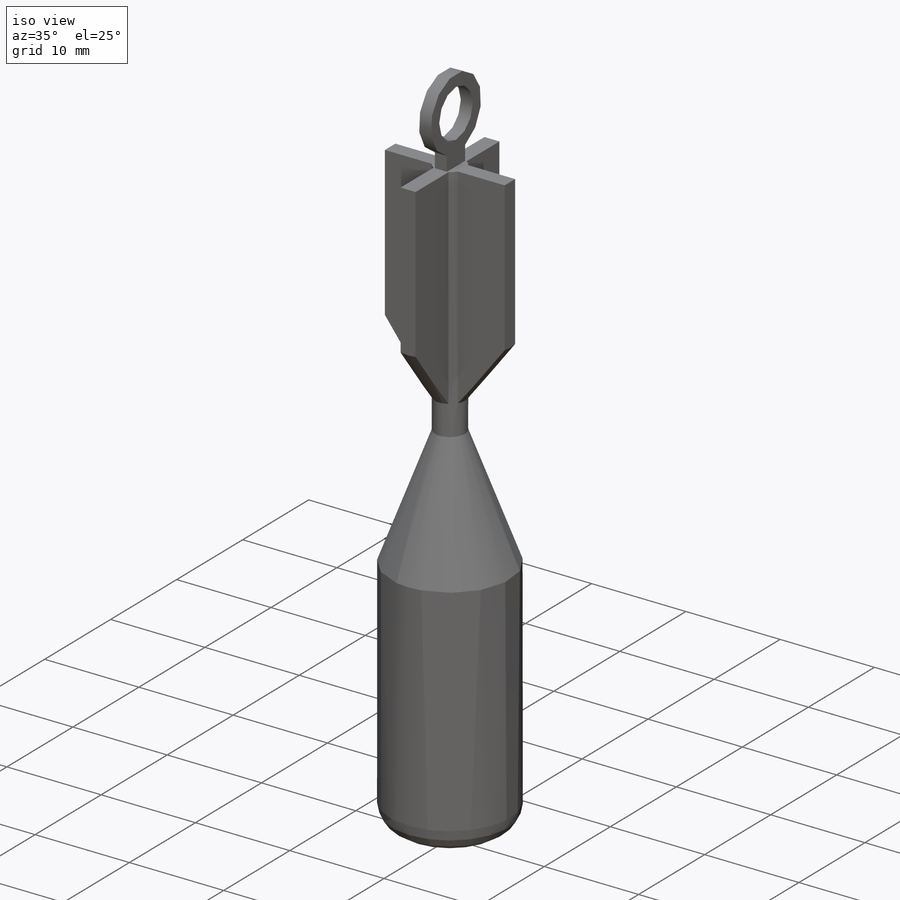
[diagram: iso view]
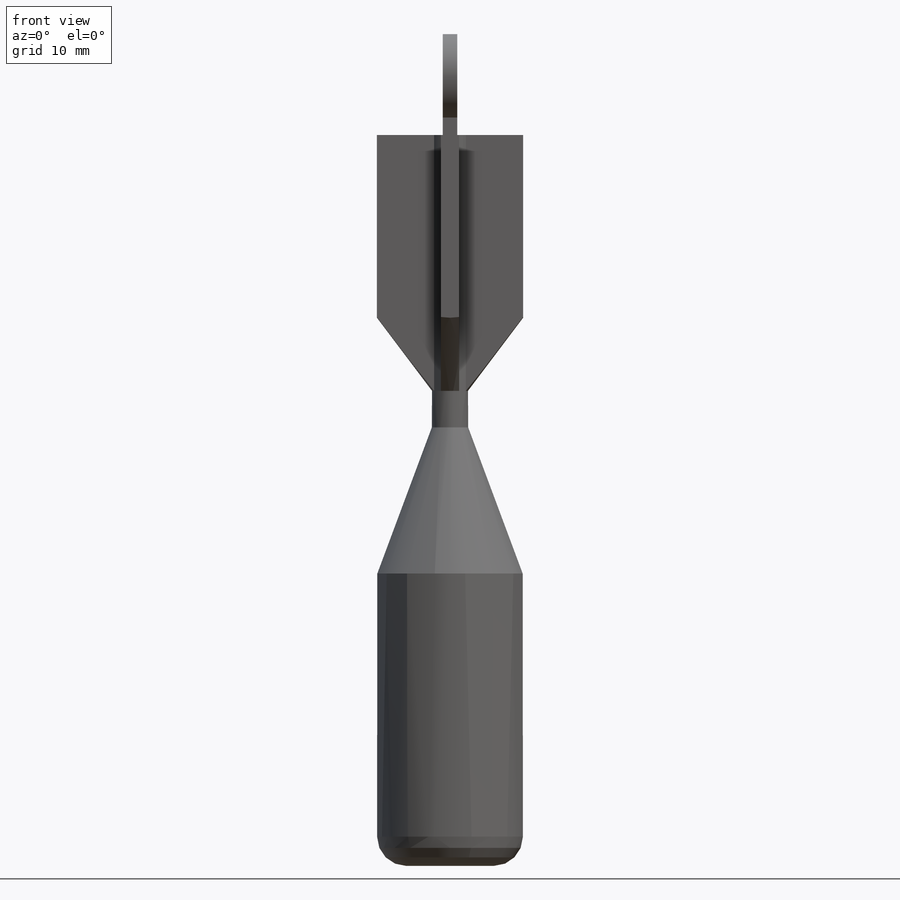
[diagram: front view]
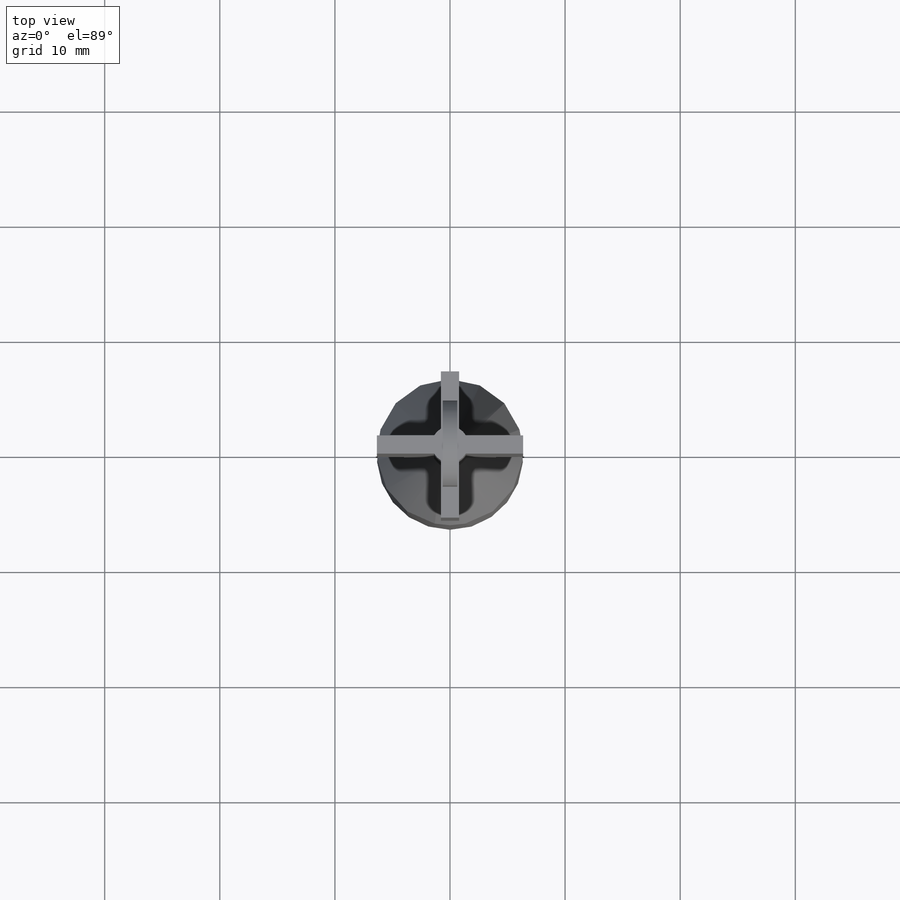
[diagram: top view]
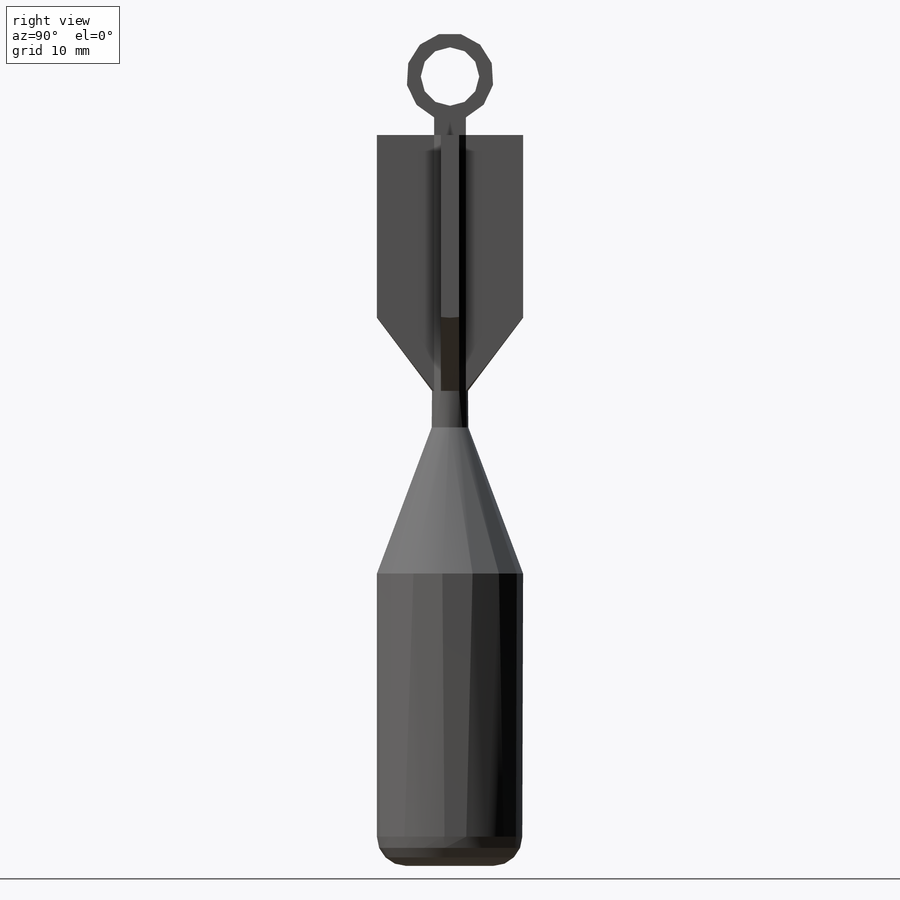
[diagram: right view]
SOLIDWORKS PART (.sldprt)
format: sldprt  version: not decoded by parser v0  size: 197,632 bytes
history: native  units: mm
features: sketch x7, extrude x3, material x1, fillet x1, revolve x1, cut_revolve x1 (+11 scaffold rows collapsed)
feature tree (25):
  scaffold x11  (default folders/planes/origin — collapsed)
  material  "AISI 304"
  sketch  "Sketch1"  dims[D1=~6.993347mm]
  extrude  "Extrude1"  Depth=25.4mm
  fillet  "Fillet1"  Radius=2.54mm
  sketch  "Sketch2"  dims[D1=38.1mm D2=25.4mm D3=1.5875mm]
  revolve  "Revolve1"  Angle=360deg
  sketch  "Sketch4"
  sketch  "Sketch3"  dims[D1=~0.79375mm D2=1.5875mm D3=1.5875mm D4=~0.79375mm D5=6.35mm D6=12.7mm]
  sketch  "Sketch5"
  extrude  "Extrude2"  Depth=22.225mm
  sketch  "Sketch7"  dims[D1=6.35mm D2=6.35mm]
  cut_revolve  "Cut-Revolve5"  Angle=360deg
  sketch  "Sketch9"  dims[D1=1.524mm]
  extrude  "Extrude3"  Depth=0.635mm
decode coverage: 11 of 13 modeling features carry decoded parameters
note: ~ marks probable driven/reference dimensions
note: suppression state not decoded; provenance and decode notes live in map.json
